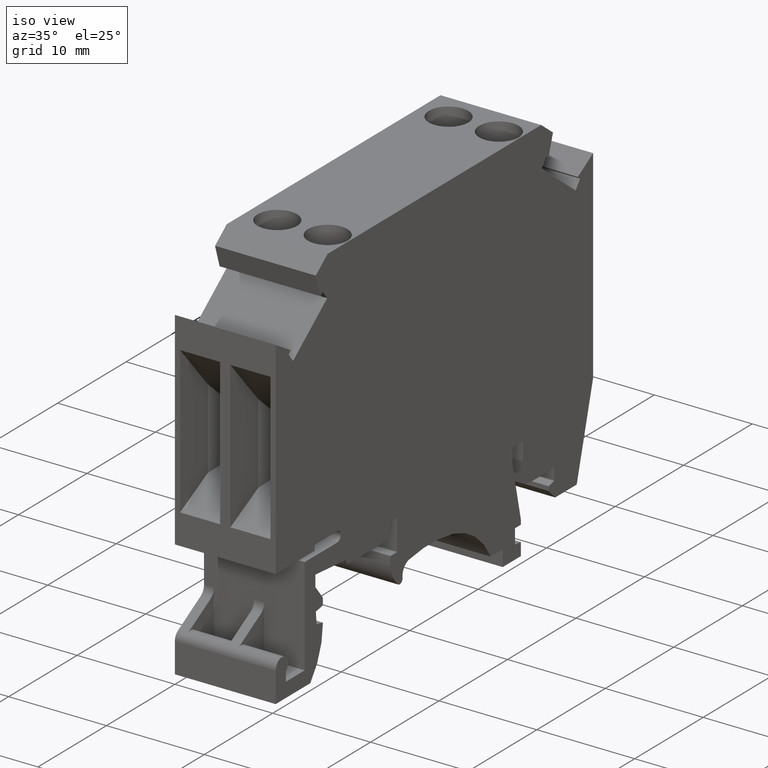
[diagram: clean part render]
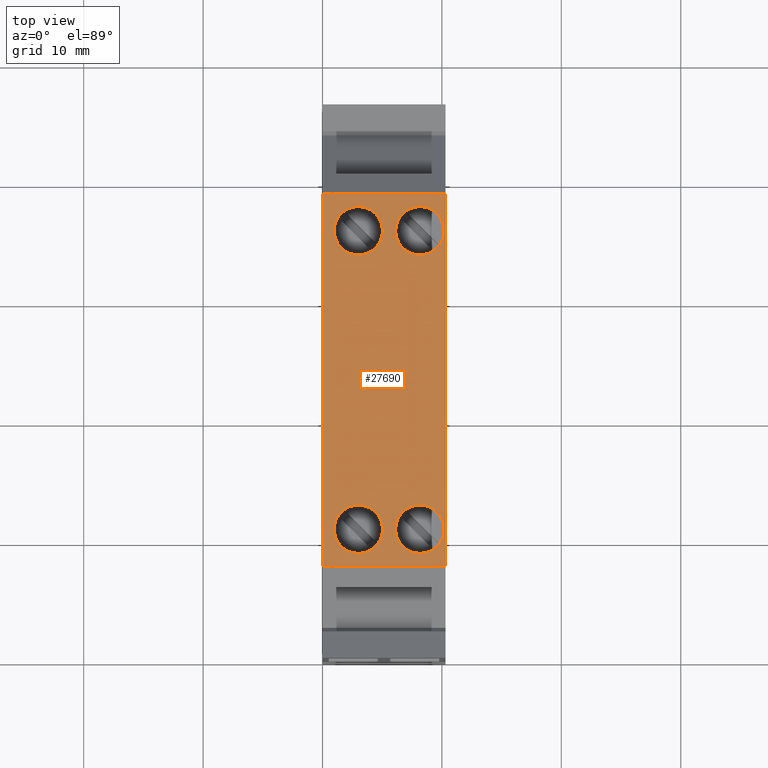
[diagram: tour spotlight — one face highlighted and labeled with its STEP entity id]
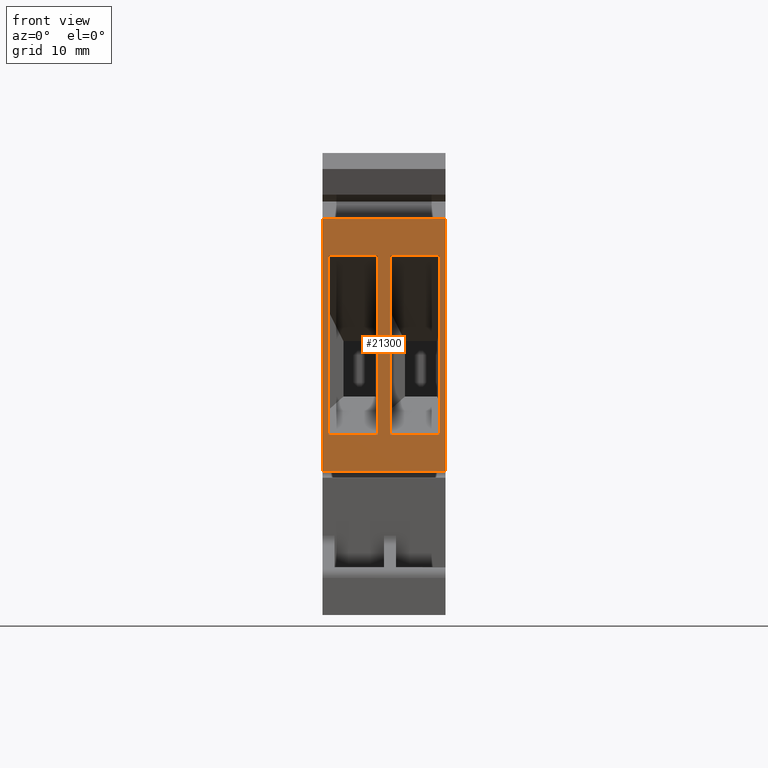
[diagram: tour spotlight — one face highlighted and labeled with its STEP entity id]
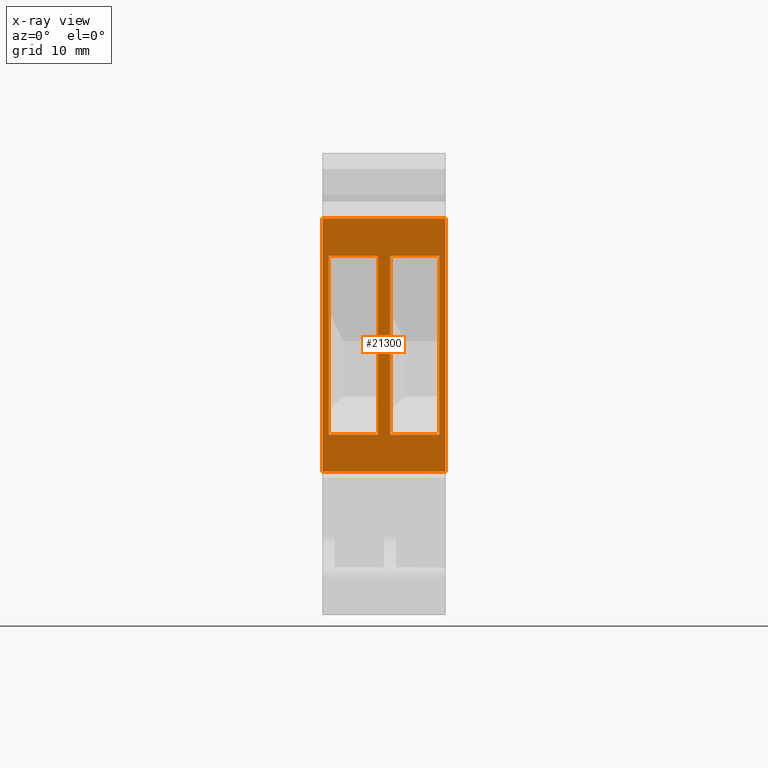
[diagram: x-ray of the same camera — body ghosted, this tour face saturated]
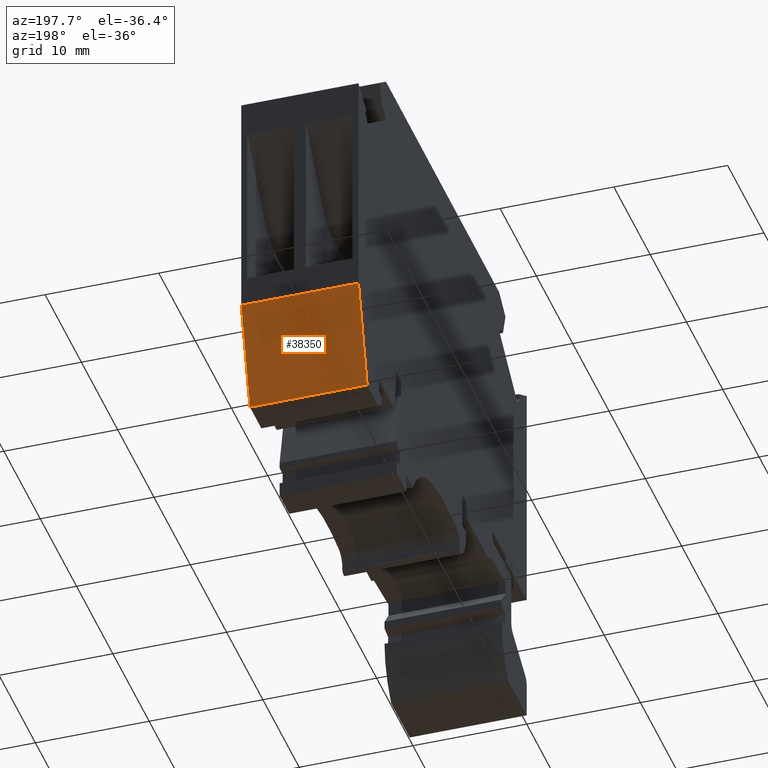
[diagram: tour spotlight — one face highlighted and labeled with its STEP entity id]
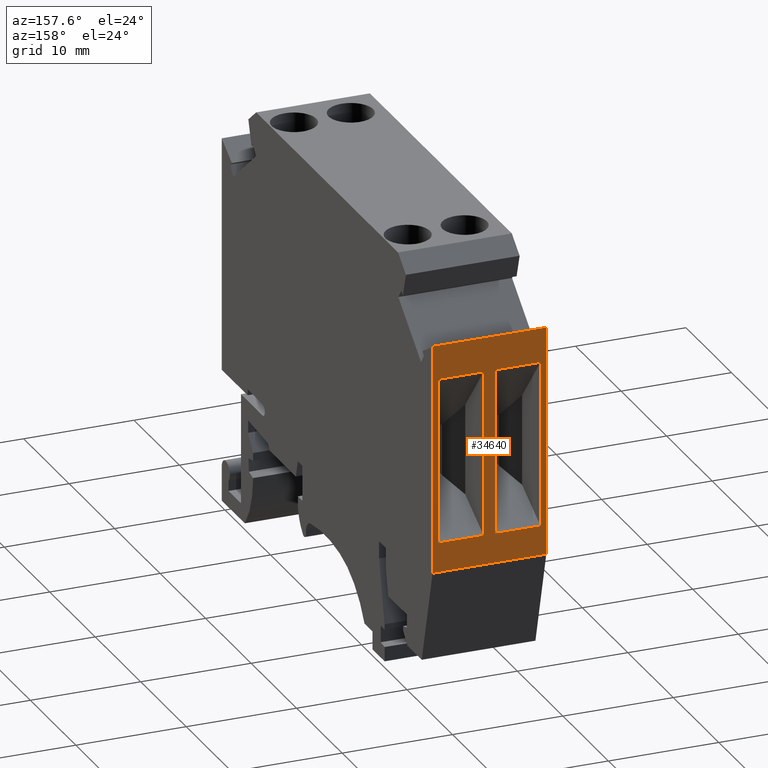
[diagram: tour spotlight — one face highlighted and labeled with its STEP entity id]
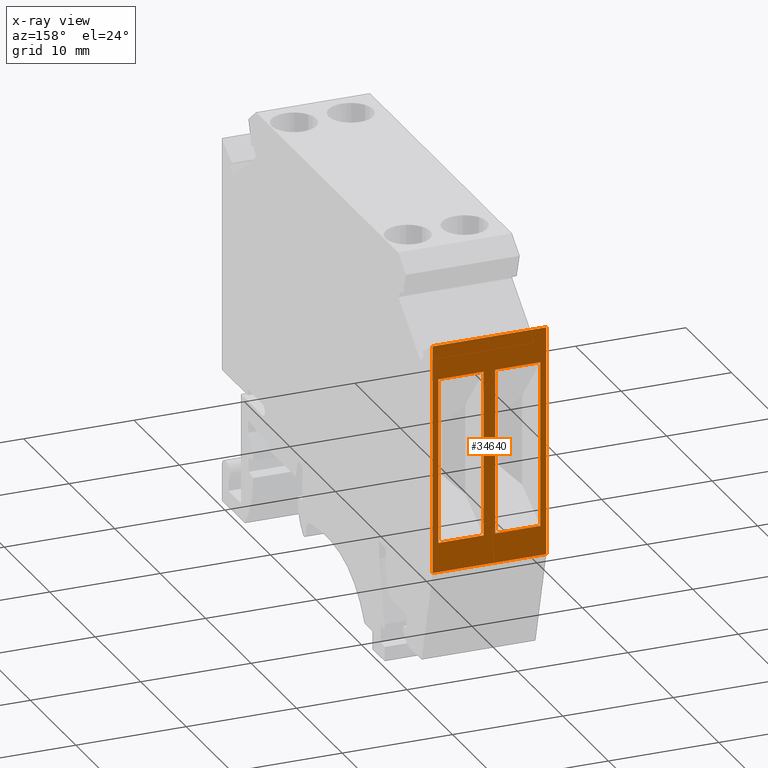
[diagram: x-ray of the same camera — body ghosted, this tour face saturated]
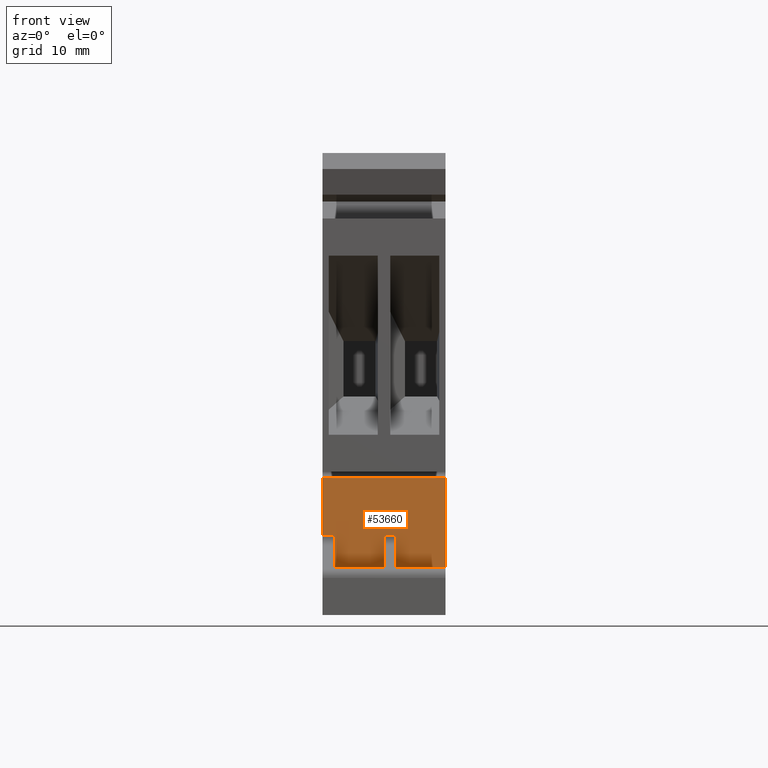
[diagram: tour spotlight — one face highlighted and labeled with its STEP entity id]
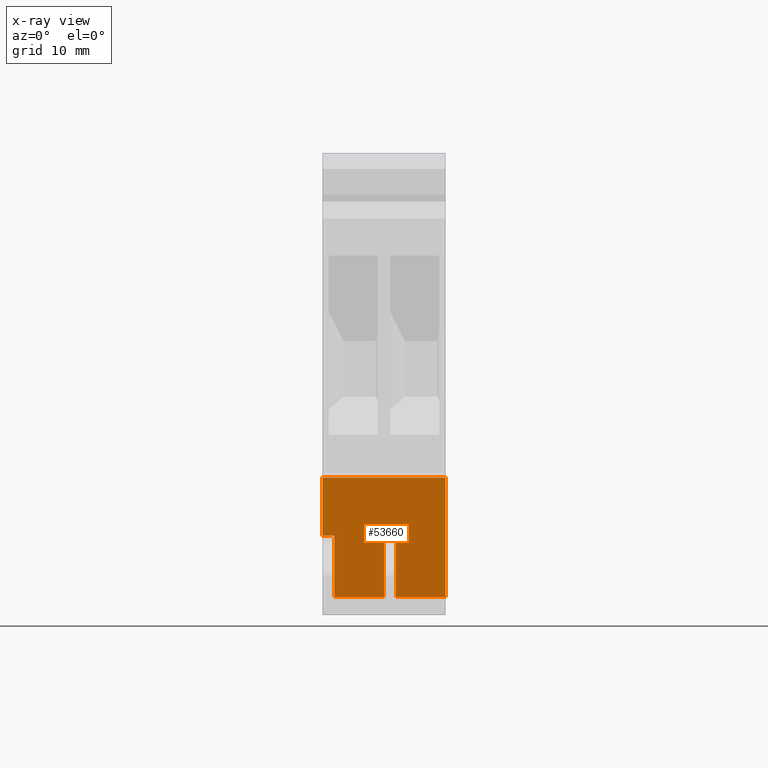
[diagram: x-ray of the same camera — body ghosted, this tour face saturated]
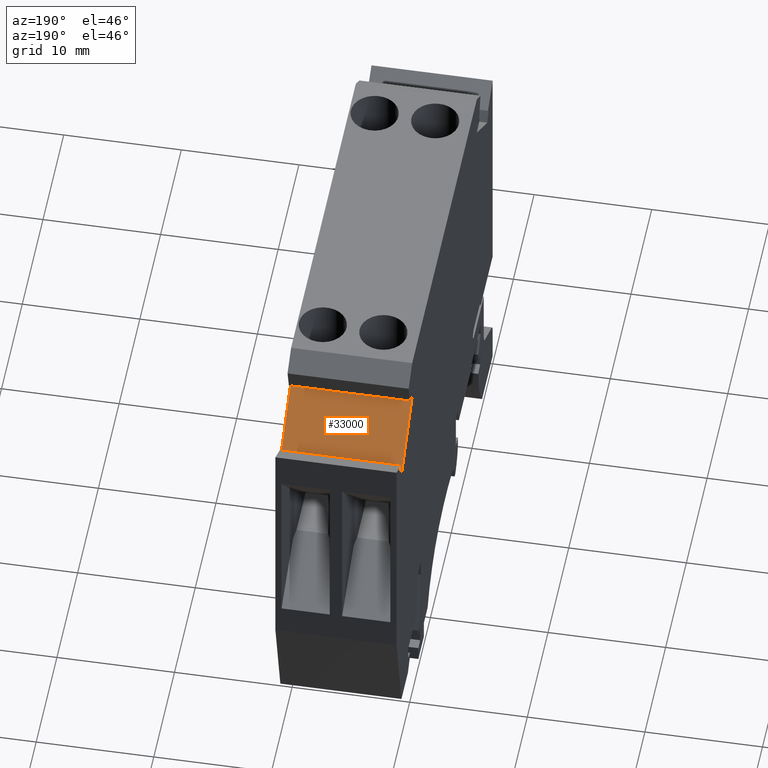
[diagram: tour spotlight — one face highlighted and labeled with its STEP entity id]
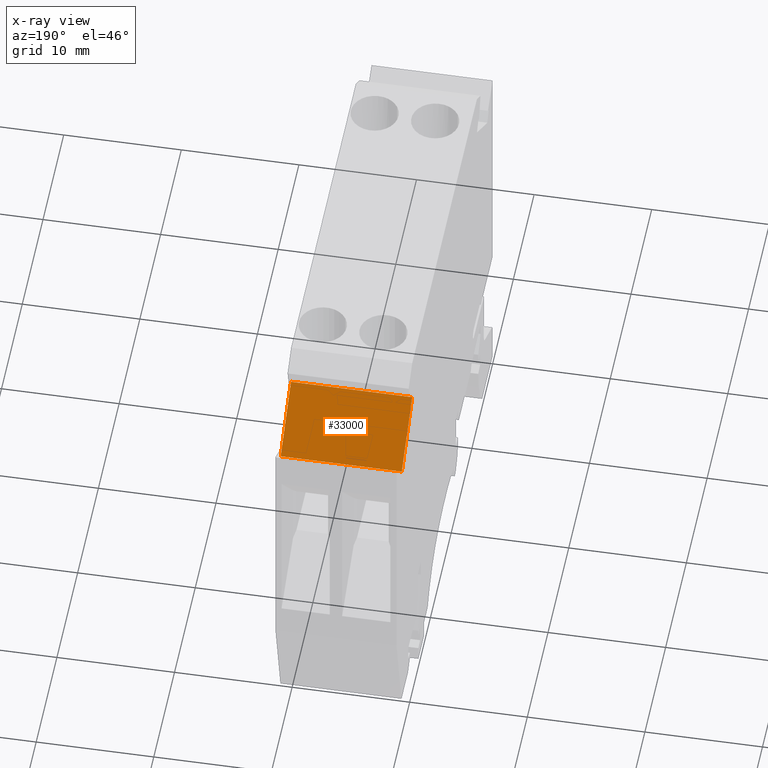
[diagram: x-ray of the same camera — body ghosted, this tour face saturated]
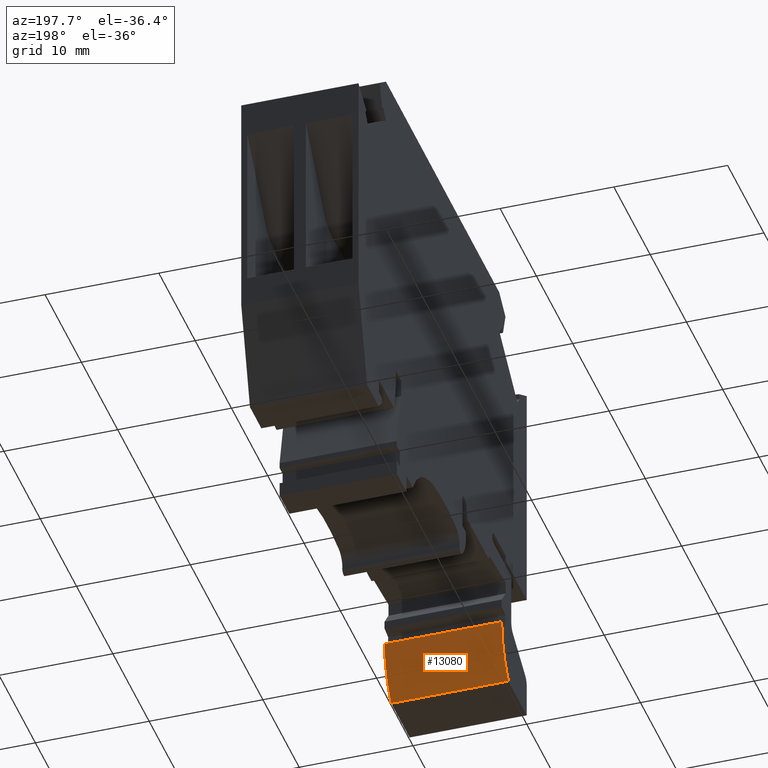
[diagram: tour spotlight — one face highlighted and labeled with its STEP entity id]
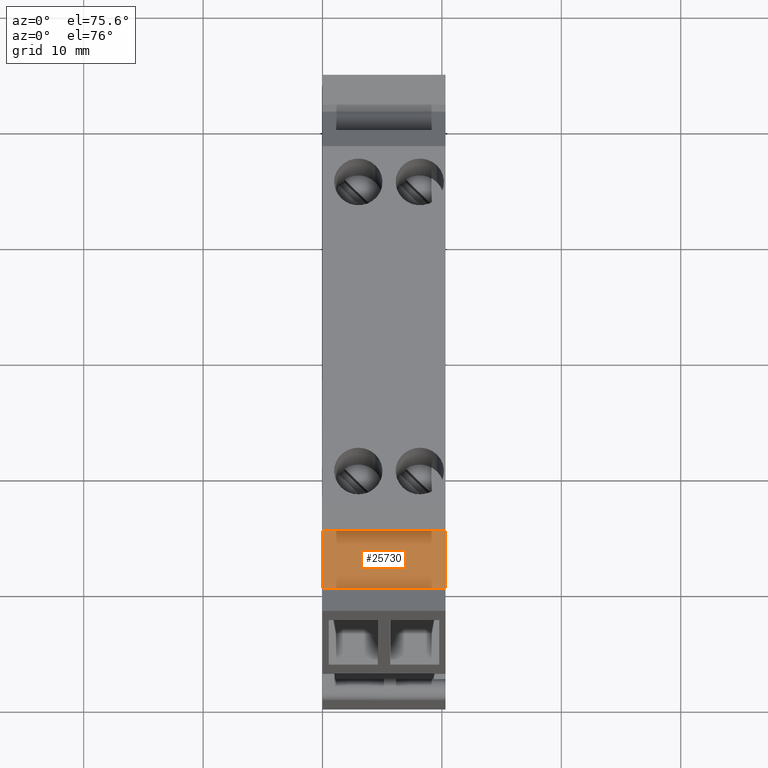
[diagram: tour spotlight — one face highlighted and labeled with its STEP entity id]
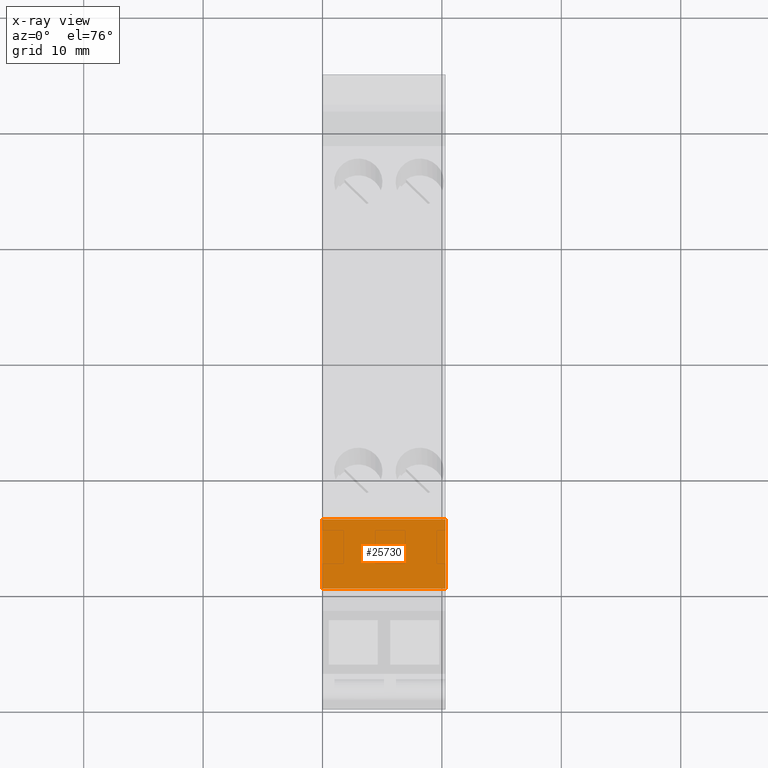
[diagram: x-ray of the same camera — body ghosted, this tour face saturated]
A machine part: a face-by-face anatomy tour. The part has 152 B-rep faces; the first image is the clean iso view, then the 8 largest visible faces are spotlighted one at a time (largest first), each with its STEP entity span.

Face 1 — top view, entity #27690. In plain terms, the highlighted planar face has unit normal (0, 0, -1).
Definition (entity closure, byte-faithful):
#840=CARTESIAN_POINT('',(-37.2770985338076,42.9295237515583,10.3));
#850=VERTEX_POINT('',#840);
#880=CARTESIAN_POINT('',(-56.8069065338077,42.9295237515583,10.3));
#890=DIRECTION('',(1.,0.,0.));
#900=VECTOR('',#890,1.);
#910=LINE('',#880,#900);
#920=CARTESIAN_POINT('',(-6.07709853380768,42.9295237515583,10.3));
#930=VERTEX_POINT('',#920);
#940=EDGE_CURVE('',#850,#930,#910,.T.);
#10520=CARTESIAN_POINT('',(-6.07709853380768,42.9295237515583,
-7.105427357601E-15));
#10530=VERTEX_POINT('',#10520);
#10560=CARTESIAN_POINT('',(-56.8069065338077,42.9295237515583,
3.5527136788005E-15));
#10570=DIRECTION('',(1.,0.,0.));
#10580=VECTOR('',#10570,1.);
#10590=LINE('',#10560,#10580);
#10600=CARTESIAN_POINT('',(-37.2770985338076,42.9295237515583,
-7.105427357601E-15));
#10610=VERTEX_POINT('',#10600);
#10620=EDGE_CURVE('',#10610,#10530,#10590,.T.);
#26610=CARTESIAN_POINT('',(-37.2770985338076,42.9295237515583,5.15));
#26620=DIRECTION('',(0.,0.,1.));
#26630=VECTOR('',#26620,1.);
#26640=LINE('',#26610,#26630);
#26650=EDGE_CURVE('',#10610,#850,#26640,.T.);
#26770=CARTESIAN_POINT('',(-36.932770920518,42.9295237515583,5.15));
#26780=DIRECTION('',(-0.,-1.,-0.));
#26790=DIRECTION('',(-1.,0.,0.));
#26800=AXIS2_PLACEMENT_3D('',#26770,#26780,#26790);
#26810=PLANE('',#26800);
#26820=CARTESIAN_POINT('',(-34.1770985338077,42.9295237515583,
3.00000000000001));
#26830=DIRECTION('',(-1.23259516440783E-32,1.,-2.46519032881566E-32));
#26840=DIRECTION('',(0.707106781186548,-2.46519032881566E-32,
0.707106781186547));
#26850=AXIS2_PLACEMENT_3D('',#26820,#26830,#26840);
#26860=CIRCLE('',#26850,2.025);
#26870=CARTESIAN_POINT('',(-36.1621992869182,42.9295237515583,
2.60000000000004));
#26880=VERTEX_POINT('',#26870);
#26890=CARTESIAN_POINT('',(-32.7452073019049,42.9295237515583,
4.43189123190277));
#26900=VERTEX_POINT('',#26890);
#26910=EDGE_CURVE('',#26880,#26900,#26860,.T.);
#26920=ORIENTED_EDGE('',*,*,#26910,.F.);
#26930=CARTESIAN_POINT('',(-35.6089897657105,42.9295237515583,
1.56810876809725));
#26940=VERTEX_POINT('',#26930);
#26950=EDGE_CURVE('',#26900,#26940,#26860,.T.);
#26960=ORIENTED_EDGE('',*,*,#26950,.F.);
#26970=EDGE_CURVE('',#26940,#26880,#26860,.T.);
#26980=ORIENTED_EDGE('',*,*,#26970,.F.);
#26990=EDGE_LOOP('',(#26980,#26960,#26920));
#27000=FACE_BOUND('',#26990,.T.);
#27010=CARTESIAN_POINT('',(-9.17709853380769,42.9295237515583,
3.00000000000001));
#27020=DIRECTION('',(-1.23259516440783E-32,1.,-2.46519032881566E-32));
#27030=DIRECTION('',(0.707106781186548,-2.46519032881566E-32,
0.707106781186547));
#27040=AXIS2_PLACEMENT_3D('',#27010,#27020,#27030);
#27050=CIRCLE('',#27040,2.025);
#27060=CARTESIAN_POINT('',(-11.1806523298767,42.9295237515583,
3.293933982822));
#27070=VERTEX_POINT('',#27060);
#27080=CARTESIAN_POINT('',(-7.74520730190493,42.9295237515583,
4.43189123190276));
#27090=VERTEX_POINT('',#27080);
#27100=EDGE_CURVE('',#27070,#27090,#27050,.T.);
#27110=ORIENTED_EDGE('',*,*,#27100,.F.);
#27120=CARTESIAN_POINT('',(-10.6089897657104,42.9295237515583,
1.56810876809725));
#27130=VERTEX_POINT('',#27120);
#27140=EDGE_CURVE('',#27090,#27130,#27050,.T.);
#27150=ORIENTED_EDGE('',*,*,#27140,.F.);
#27160=EDGE_CURVE('',#27130,#27070,#27050,.T.);
#27170=ORIENTED_EDGE('',*,*,#27160,.F.);
#27180=EDGE_LOOP('',(#27170,#27150,#27110));
#27190=FACE_BOUND('',#27180,.T.);
#27200=ORIENTED_EDGE('',*,*,#940,.T.);
#27210=ORIENTED_EDGE('',*,*,#26650,.T.);
#27220=ORIENTED_EDGE('',*,*,#10620,.F.);
#27230=CARTESIAN_POINT('',(-6.07709853380767,42.9295237515583,5.15));
#27240=DIRECTION('',(0.,0.,1.));
#27250=VECTOR('',#27240,1.);
#27260=LINE('',#27230,#27250);
#27270=EDGE_CURVE('',#10530,#930,#27260,.T.);
#27280=ORIENTED_EDGE('',*,*,#27270,.F.);
#27290=EDGE_LOOP('',(#27280,#27220,#27210,#27200));
#27300=FACE_OUTER_BOUND('',#27290,.T.);
#27310=CARTESIAN_POINT('',(-34.1770985338077,42.9295237515583,
8.15000000000001));
#27320=DIRECTION('',(-1.23259516440783E-32,1.,-2.46519032881566E-32));
#27330=DIRECTION('',(0.707106781186548,-2.46519032881566E-32,
0.707106781186547));
#27340=AXIS2_PLACEMENT_3D('',#27310,#27320,#27330);
#27350=CIRCLE('',#27340,2.025);
#27360=CARTESIAN_POINT('',(-36.1621992869182,42.9295237515583,
7.75000000000004));
#27370=VERTEX_POINT('',#27360);
#27380=CARTESIAN_POINT('',(-32.7452073019049,42.9295237515583,
9.58189123190277));
#27390=VERTEX_POINT('',#27380);
#27400=EDGE_CURVE('',#27370,#27390,#27350,.T.);
#27410=ORIENTED_EDGE('',*,*,#27400,.F.);
#27420=CARTESIAN_POINT('',(-35.6089897657105,42.9295237515583,
6.71810876809725));
#27430=VERTEX_POINT('',#27420);
#27440=EDGE_CURVE('',#27390,#27430,#27350,.T.);
#27450=ORIENTED_EDGE('',*,*,#27440,.F.);
#27460=EDGE_CURVE('',#27430,#27370,#27350,.T.);
#27470=ORIENTED_EDGE('',*,*,#27460,.F.);
#27480=EDGE_LOOP('',(#27470,#27450,#27410));
#27490=FACE_BOUND('',#27480,.T.);
#27500=CARTESIAN_POINT('',(-9.17709853380769,42.9295237515583,
8.15000000000001));
#27510=DIRECTION('',(-1.23259516440783E-32,1.,-2.46519032881566E-32));
#27520=DIRECTION('',(0.707106781186548,-2.46519032881566E-32,
0.707106781186547));
#27530=AXIS2_PLACEMENT_3D('',#27500,#27510,#27520);
#27540=CIRCLE('',#27530,2.025);
#27550=CARTESIAN_POINT('',(-11.1806523298767,42.9295237515583,
8.443933982822));
#27560=VERTEX_POINT('',#27550);
#27570=CARTESIAN_POINT('',(-7.74520730190493,42.9295237515583,
9.58189123190276));
#27580=VERTEX_POINT('',#27570);
#27590=EDGE_CURVE('',#27560,#27580,#27540,.T.);
#27600=ORIENTED_EDGE('',*,*,#27590,.F.);
#27610=CARTESIAN_POINT('',(-10.6089897657104,42.9295237515583,
6.71810876809725));
#27620=VERTEX_POINT('',#27610);
#27630=EDGE_CURVE('',#27580,#27620,#27540,.T.);
#27640=ORIENTED_EDGE('',*,*,#27630,.F.);
#27650=EDGE_CURVE('',#27620,#27560,#27540,.T.);
#27660=ORIENTED_EDGE('',*,*,#27650,.F.);
#27670=EDGE_LOOP('',(#27660,#27640,#27600));
#27680=FACE_BOUND('',#27670,.T.);
#27690=ADVANCED_FACE('',(#27000,#27190,#27300,#27490,#27680),#26810,.F.)
;

Face 2 — front view, entity #21300. An x-ray twin of the same camera follows (body ghosted, this face saturated) — the face is partly hidden behind the body. In plain terms, the highlighted planar face has unit normal (-0, 1, 0).
Definition (entity closure, byte-faithful):
#120=CARTESIAN_POINT('',(-44.8520985338077,16.2295237515583,10.3));
#130=VERTEX_POINT('',#120);
#160=CARTESIAN_POINT('',(-44.8520985338077,8.88178419700125E-16,10.3));
#170=DIRECTION('',(0.,1.,0.));
#180=VECTOR('',#170,1.);
#190=LINE('',#160,#180);
#200=CARTESIAN_POINT('',(-44.8520985338077,37.4391457022166,10.3));
#210=VERTEX_POINT('',#200);
#220=EDGE_CURVE('',#130,#210,#190,.T.);
#11240=CARTESIAN_POINT('',(-44.8520985338077,37.4391457022166,
-7.105427357601E-15));
#11250=VERTEX_POINT('',#11240);
#11280=CARTESIAN_POINT('',(-44.8520985338077,1.77635683940025E-15,
-7.105427357601E-15));
#11290=DIRECTION('',(0.,1.,0.));
#11300=VECTOR('',#11290,1.);
#11310=LINE('',#11280,#11300);
#11320=CARTESIAN_POINT('',(-44.8520985338077,16.2295237515583,
-7.105427357601E-15));
#11330=VERTEX_POINT('',#11320);
#11340=EDGE_CURVE('',#11330,#11250,#11310,.T.);
#20410=CARTESIAN_POINT('',(-44.8520985338077,16.7795237515581,5.15));
#20420=DIRECTION('',(1.,0.,0.));
#20430=DIRECTION('',(0.,-1.,0.));
#20440=AXIS2_PLACEMENT_3D('',#20410,#20420,#20430);
#20450=PLANE('',#20440);
#20460=CARTESIAN_POINT('',(-44.8520985338077,10.9158644389662,4.625));
#20470=DIRECTION('',(0.,1.,0.));
#20480=VECTOR('',#20470,1.);
#20490=LINE('',#20460,#20480);
#20500=CARTESIAN_POINT('',(-44.8520985338077,19.3295237515583,4.625));
#20510=VERTEX_POINT('',#20500);
#20520=CARTESIAN_POINT('',(-44.8520985338077,34.3295237515583,4.625));
#20530=VERTEX_POINT('',#20520);
#20540=EDGE_CURVE('',#20510,#20530,#20490,.T.);
#20550=ORIENTED_EDGE('',*,*,#20540,.F.);
#20560=CARTESIAN_POINT('',(-44.8520985338077,34.3295237515583,5.15));
#20570=DIRECTION('',(0.,0.,1.));
#20580=VECTOR('',#20570,1.);
#20590=LINE('',#20560,#20580);
#20600=CARTESIAN_POINT('',(-44.8520985338077,34.3295237515583,
0.525000000000004));
#20610=VERTEX_POINT('',#20600);
#20620=EDGE_CURVE('',#20610,#20530,#20590,.T.);
#20630=ORIENTED_EDGE('',*,*,#20620,.T.);
#20640=CARTESIAN_POINT('',(-44.8520985338077,10.9158644389662,
0.525000000000004));
#20650=DIRECTION('',(0.,-1.,0.));
#20660=VECTOR('',#20650,1.);
#20670=LINE('',#20640,#20660);
#20680=CARTESIAN_POINT('',(-44.8520985338077,19.3295237515583,
0.525000000000004));
#20690=VERTEX_POINT('',#20680);
#20700=EDGE_CURVE('',#20610,#20690,#20670,.T.);
#20710=ORIENTED_EDGE('',*,*,#20700,.F.);
#20720=CARTESIAN_POINT('',(-44.8520985338077,19.3295237515583,5.15));
#20730=DIRECTION('',(0.,0.,-1.));
#20740=VECTOR('',#20730,1.);
#20750=LINE('',#20720,#20740);
#20760=EDGE_CURVE('',#20510,#20690,#20750,.T.);
#20770=ORIENTED_EDGE('',*,*,#20760,.T.);
#20780=EDGE_LOOP('',(#20770,#20710,#20630,#20550));
#20790=FACE_BOUND('',#20780,.T.);
#20800=ORIENTED_EDGE('',*,*,#220,.T.);
#20810=CARTESIAN_POINT('',(-44.8520985338077,16.2295237515583,
-5.14999999999999));
#20820=DIRECTION('',(0.,0.,1.));
#20830=VECTOR('',#20820,1.);
#20840=LINE('',#20810,#20830);
#20850=EDGE_CURVE('',#11330,#130,#20840,.T.);
#20860=ORIENTED_EDGE('',*,*,#20850,.T.);
#20870=ORIENTED_EDGE('',*,*,#11340,.F.);
#20880=CARTESIAN_POINT('',(-44.8520985338077,37.4391457022166,
-5.14999999999999));
#20890=DIRECTION('',(0.,0.,1.));
#20900=VECTOR('',#20890,1.);
#20910=LINE('',#20880,#20900);
#20920=EDGE_CURVE('',#11250,#210,#20910,.T.);
#20930=ORIENTED_EDGE('',*,*,#20920,.F.);
#20940=EDGE_LOOP('',(#20930,#20870,#20860,#20800));
#20950=FACE_OUTER_BOUND('',#20940,.T.);
#20960=CARTESIAN_POINT('',(-44.8520985338077,10.9158644389662,9.775));
#20970=DIRECTION('',(0.,1.,0.));
#20980=VECTOR('',#20970,1.);
#20990=LINE('',#20960,#20980);
#21000=CARTESIAN_POINT('',(-44.8520985338077,19.3295237515583,9.775));
#21010=VERTEX_POINT('',#21000);
#21020=CARTESIAN_POINT('',(-44.8520985338077,34.3295237515583,9.775));
#21030=VERTEX_POINT('',#21020);
#21040=EDGE_CURVE('',#21010,#21030,#20990,.T.);
#21050=ORIENTED_EDGE('',*,*,#21040,.F.);
#21060=CARTESIAN_POINT('',(-44.8520985338077,34.3295237515583,10.3));
#21070=DIRECTION('',(0.,0.,1.));
#21080=VECTOR('',#21070,1.);
#21090=LINE('',#21060,#21080);
#21100=CARTESIAN_POINT('',(-44.8520985338077,34.3295237515583,5.675));
#21110=VERTEX_POINT('',#21100);
#21120=EDGE_CURVE('',#21110,#21030,#21090,.T.);
#21130=ORIENTED_EDGE('',*,*,#21120,.T.);
#21140=CARTESIAN_POINT('',(-44.8520985338077,10.9158644389662,5.675));
#21150=DIRECTION('',(0.,-1.,0.));
#21160=VECTOR('',#21150,1.);
#21170=LINE('',#21140,#21160);
#21180=CARTESIAN_POINT('',(-44.8520985338077,19.3295237515583,5.675));
#21190=VERTEX_POINT('',#21180);
#21200=EDGE_CURVE('',#21110,#21190,#21170,.T.);
#21210=ORIENTED_EDGE('',*,*,#21200,.F.);
#21220=CARTESIAN_POINT('',(-44.8520985338077,19.3295237515583,10.3));
#21230=DIRECTION('',(0.,0.,-1.));
#21240=VECTOR('',#21230,1.);
#21250=LINE('',#21220,#21240);
#21260=EDGE_CURVE('',#21010,#21190,#21250,.T.);
#21270=ORIENTED_EDGE('',*,*,#21260,.T.);
#21280=EDGE_LOOP('',(#21270,#21210,#21130,#21050));
#21290=FACE_BOUND('',#21280,.T.);
#21300=ADVANCED_FACE('',(#20790,#20950,#21290),#20450,.F.);

Face 3 — auxiliary view, entity #38350. In plain terms, the highlighted planar face has unit normal (-0, -0.9659, 0.2588).
Definition (entity closure, byte-faithful):
#1640=CARTESIAN_POINT('',(1.49790146619231,16.6504165609533,10.3));
#1650=VERTEX_POINT('',#1640);
#1680=CARTESIAN_POINT('',(-0.408976595318013,9.53385075155829,10.3));
#1690=DIRECTION('',(-0.258819045102521,-0.965925826289068,0.));
#1700=VECTOR('',#1690,1.);
#1710=LINE('',#1680,#1700);
#1720=CARTESIAN_POINT('',(-0.892444557849712,7.7295237515582,10.3));
#1730=VERTEX_POINT('',#1720);
#1740=EDGE_CURVE('',#1650,#1730,#1710,.T.);
#9720=CARTESIAN_POINT('',(-0.892444557849712,7.7295237515582,
-7.105427357601E-15));
#9730=VERTEX_POINT('',#9720);
#9760=CARTESIAN_POINT('',(-0.408976595318013,9.53385075155829,
3.5527136788005E-15));
#9770=DIRECTION('',(-0.258819045102521,-0.965925826289068,0.));
#9780=VECTOR('',#9770,1.);
#9790=LINE('',#9760,#9780);
#9800=CARTESIAN_POINT('',(1.49790146619231,16.6504165609533,
-7.105427357601E-15));
#9810=VERTEX_POINT('',#9800);
#9820=EDGE_CURVE('',#9810,#9730,#9790,.T.);
#34220=CARTESIAN_POINT('',(1.49790146619231,16.6504165609533,5.15));
#34230=DIRECTION('',(0.,0.,1.));
#34240=VECTOR('',#34230,1.);
#34250=LINE('',#34220,#34240);
#34260=EDGE_CURVE('',#9810,#1650,#34250,.T.);
#38190=CARTESIAN_POINT('',(1.44338278825473,16.4469500849288,5.15));
#38200=DIRECTION('',(-0.965925826289068,0.258819045102521,0.));
#38210=DIRECTION('',(0.258819045102521,0.965925826289068,0.));
#38220=AXIS2_PLACEMENT_3D('',#38190,#38200,#38210);
#38230=PLANE('',#38220);
#38240=ORIENTED_EDGE('',*,*,#1740,.T.);
#38250=ORIENTED_EDGE('',*,*,#34260,.T.);
#38260=ORIENTED_EDGE('',*,*,#9820,.F.);
#38270=CARTESIAN_POINT('',(-0.892444557849707,7.7295237515582,5.15));
#38280=DIRECTION('',(0.,0.,1.));
#38290=VECTOR('',#38280,1.);
#38300=LINE('',#38270,#38290);
#38310=EDGE_CURVE('',#9730,#1730,#38300,.T.);
#38320=ORIENTED_EDGE('',*,*,#38310,.F.);
#38330=EDGE_LOOP('',(#38320,#38260,#38250,#38240));
#38340=FACE_OUTER_BOUND('',#38330,.T.);
#38350=ADVANCED_FACE('',(#38340),#38230,.F.);

Face 4 — auxiliary view, entity #34640. An x-ray twin of the same camera follows (body ghosted, this face saturated) — the face is partly hidden behind the body. In plain terms, the highlighted planar face has unit normal (0, -1, -0).
Definition (entity closure, byte-faithful):
#1560=CARTESIAN_POINT('',(1.49790146619231,37.4391457022167,10.3));
#1570=VERTEX_POINT('',#1560);
#1600=CARTESIAN_POINT('',(1.49790146619231,8.88178419700125E-16,10.3));
#1610=DIRECTION('',(0.,-1.,0.));
#1620=VECTOR('',#1610,1.);
#1630=LINE('',#1600,#1620);
#1640=CARTESIAN_POINT('',(1.49790146619231,16.6504165609533,10.3));
#1650=VERTEX_POINT('',#1640);
#1660=EDGE_CURVE('',#1570,#1650,#1630,.T.);
#9800=CARTESIAN_POINT('',(1.49790146619231,16.6504165609533,
-7.105427357601E-15));
#9810=VERTEX_POINT('',#9800);
#9840=CARTESIAN_POINT('',(1.49790146619231,1.77635683940025E-15,
-7.105427357601E-15));
#9850=DIRECTION('',(0.,-1.,0.));
#9860=VECTOR('',#9850,1.);
#9870=LINE('',#9840,#9860);
#9880=CARTESIAN_POINT('',(1.49790146619231,37.4391457022167,
-7.105427357601E-15));
#9890=VERTEX_POINT('',#9880);
#9900=EDGE_CURVE('',#9890,#9810,#9870,.T.);
#33640=CARTESIAN_POINT('',(1.49790146619231,37.4391457022167,
-5.14999999999999));
#33650=DIRECTION('',(0.,0.,-1.));
#33660=VECTOR('',#33650,1.);
#33670=LINE('',#33640,#33660);
#33680=EDGE_CURVE('',#1570,#9890,#33670,.T.);
#33800=CARTESIAN_POINT('',(1.49790146619231,36.0815113279068,5.15));
#33810=DIRECTION('',(-1.,0.,0.));
#33820=DIRECTION('',(0.,1.,0.));
#33830=AXIS2_PLACEMENT_3D('',#33800,#33810,#33820);
#33840=PLANE('',#33830);
#33850=CARTESIAN_POINT('',(1.49790146619231,10.9158644389662,
0.525000000000004));
#33860=DIRECTION('',(0.,-1.,0.));
#33870=VECTOR('',#33860,1.);
#33880=LINE('',#33850,#33870);
#33890=CARTESIAN_POINT('',(1.49790146619231,34.3295237515583,
0.525000000000004));
#33900=VERTEX_POINT('',#33890);
#33910=CARTESIAN_POINT('',(1.49790146619231,19.3295237515583,
0.525000000000004));
#33920=VERTEX_POINT('',#33910);
#33930=EDGE_CURVE('',#33900,#33920,#33880,.T.);
#33940=ORIENTED_EDGE('',*,*,#33930,.T.);
#33950=CARTESIAN_POINT('',(1.49790146619231,34.3295237515583,5.15));
#33960=DIRECTION('',(0.,0.,1.));
#33970=VECTOR('',#33960,1.);
#33980=LINE('',#33950,#33970);
#33990=CARTESIAN_POINT('',(1.49790146619231,34.3295237515583,4.625));
#34000=VERTEX_POINT('',#33990);
#34010=EDGE_CURVE('',#33900,#34000,#33980,.T.);
#34020=ORIENTED_EDGE('',*,*,#34010,.F.);
#34030=CARTESIAN_POINT('',(1.49790146619231,10.9158644389662,4.625));
#34040=DIRECTION('',(0.,1.,0.));
#34050=VECTOR('',#34040,1.);
#34060=LINE('',#34030,#34050);
#34070=CARTESIAN_POINT('',(1.49790146619231,19.3295237515583,4.625));
#34080=VERTEX_POINT('',#34070);
#34090=EDGE_CURVE('',#34080,#34000,#34060,.T.);
#34100=ORIENTED_EDGE('',*,*,#34090,.T.);
#34110=CARTESIAN_POINT('',(1.49790146619231,19.3295237515583,5.15));
#34120=DIRECTION('',(0.,0.,-1.));
#34130=VECTOR('',#34120,1.);
#34140=LINE('',#34110,#34130);
#34150=EDGE_CURVE('',#34080,#33920,#34140,.T.);
#34160=ORIENTED_EDGE('',*,*,#34150,.F.);
#34170=EDGE_LOOP('',(#34160,#34100,#34020,#33940));
#34180=FACE_BOUND('',#34170,.T.);
#34190=ORIENTED_EDGE('',*,*,#1660,.T.);
#34200=ORIENTED_EDGE('',*,*,#33680,.F.);
#34210=ORIENTED_EDGE('',*,*,#9900,.F.);
#34220=CARTESIAN_POINT('',(1.49790146619231,16.6504165609533,5.15));
#34230=DIRECTION('',(0.,0.,1.));
#34240=VECTOR('',#34230,1.);
#34250=LINE('',#34220,#34240);
#34260=EDGE_CURVE('',#9810,#1650,#34250,.T.);
#34270=ORIENTED_EDGE('',*,*,#34260,.F.);
#34280=EDGE_LOOP('',(#34270,#34210,#34200,#34190));
#34290=FACE_OUTER_BOUND('',#34280,.T.);
#34300=CARTESIAN_POINT('',(1.49790146619231,10.9158644389662,5.675));
#34310=DIRECTION('',(0.,-1.,0.));
#34320=VECTOR('',#34310,1.);
#34330=LINE('',#34300,#34320);
#34340=CARTESIAN_POINT('',(1.49790146619231,34.3295237515583,5.675));
#34350=VERTEX_POINT('',#34340);
#34360=CARTESIAN_POINT('',(1.49790146619231,19.3295237515583,5.675));
#34370=VERTEX_POINT('',#34360);
#34380=EDGE_CURVE('',#34350,#34370,#34330,.T.);
#34390=ORIENTED_EDGE('',*,*,#34380,.T.);
#34400=CARTESIAN_POINT('',(1.49790146619231,34.3295237515583,10.3));
#34410=DIRECTION('',(0.,0.,1.));
#34420=VECTOR('',#34410,1.);
#34430=LINE('',#34400,#34420);
#34440=CARTESIAN_POINT('',(1.49790146619231,34.3295237515583,9.775));
#34450=VERTEX_POINT('',#34440);
#34460=EDGE_CURVE('',#34350,#34450,#34430,.T.);
#34470=ORIENTED_EDGE('',*,*,#34460,.F.);
#34480=CARTESIAN_POINT('',(1.49790146619231,10.9158644389662,9.775));
#34490=DIRECTION('',(0.,1.,0.));
#34500=VECTOR('',#34490,1.);
#34510=LINE('',#34480,#34500);
#34520=CARTESIAN_POINT('',(1.49790146619231,19.3295237515583,9.775));
#34530=VERTEX_POINT('',#34520);
#34540=EDGE_CURVE('',#34530,#34450,#34510,.T.);
#34550=ORIENTED_EDGE('',*,*,#34540,.T.);
#34560=CARTESIAN_POINT('',(1.49790146619231,19.3295237515583,10.3));
#34570=DIRECTION('',(0.,0.,-1.));
#34580=VECTOR('',#34570,1.);
#34590=LINE('',#34560,#34580);
#34600=EDGE_CURVE('',#34530,#34370,#34590,.T.);
#34610=ORIENTED_EDGE('',*,*,#34600,.F.);
#34620=EDGE_LOOP('',(#34610,#34550,#34470,#34390));
#34630=FACE_BOUND('',#34620,.T.);
#34640=ADVANCED_FACE('',(#34180,#34290,#34630),#33840,.F.);

Face 5 — front view, entity #53660. An x-ray twin of the same camera follows (body ghosted, this face saturated) — the face is partly hidden behind the body. In plain terms, the highlighted planar face has unit normal (0, -1, -0).
Definition (entity closure, byte-faithful):
#5230=CARTESIAN_POINT('',(-40.6020985338077,5.72952375155827,10.3));
#5240=VERTEX_POINT('',#5230);
#5270=CARTESIAN_POINT('',(-40.6020985338077,15.7295237515583,10.3));
#5280=DIRECTION('',(0.,1.,0.));
#5290=VECTOR('',#5280,1.);
#5300=LINE('',#5270,#5290);
#5310=CARTESIAN_POINT('',(-40.6020985338077,15.7295237515581,10.3));
#5320=VERTEX_POINT('',#5310);
#5330=EDGE_CURVE('',#5240,#5320,#5300,.T.);
#6120=CARTESIAN_POINT('',(-40.6020985338077,15.7295237515581,
-7.105427357601E-15));
#6130=VERTEX_POINT('',#6120);
#6160=CARTESIAN_POINT('',(-40.6020985338077,9.53385075155828,
3.5527136788005E-15));
#6170=DIRECTION('',(0.,1.,0.));
#6180=VECTOR('',#6170,1.);
#6190=LINE('',#6160,#6180);
#6200=CARTESIAN_POINT('',(-40.6020985338077,10.8802279070745,
-7.105427357601E-15));
#6210=VERTEX_POINT('',#6200);
#6220=EDGE_CURVE('',#6210,#6130,#6190,.T.);
#51890=CARTESIAN_POINT('',(-40.6020985338077,15.7295237515583,5.15));
#51900=DIRECTION('',(0.,0.,-1.));
#51910=VECTOR('',#51900,1.);
#51920=LINE('',#51890,#51910);
#51930=EDGE_CURVE('',#5320,#6130,#51920,.T.);
#52120=CARTESIAN_POINT('',(-40.6020985338077,8.88178419700125E-16,6.15))
;
#52130=DIRECTION('',(0.,-1.,0.));
#52140=VECTOR('',#52130,1.);
#52150=LINE('',#52120,#52140);
#52160=CARTESIAN_POINT('',(-40.6020985338077,10.8802279070745,6.15));
#52170=VERTEX_POINT('',#52160);
#52180=CARTESIAN_POINT('',(-40.6020985338077,5.72952375155827,6.15));
#52190=VERTEX_POINT('',#52180);
#52200=EDGE_CURVE('',#52170,#52190,#52150,.T.);
#52980=CARTESIAN_POINT('',(-40.6020985338077,10.8802279070745,
5.14999999999999));
#52990=VERTEX_POINT('',#52980);
#53020=CARTESIAN_POINT('',(-40.6020985338077,10.8802279070745,10.3));
#53030=DIRECTION('',(0.,0.,-1.));
#53040=VECTOR('',#53030,1.);
#53050=LINE('',#53020,#53040);
#53060=EDGE_CURVE('',#52170,#52990,#53050,.T.);
#53180=CARTESIAN_POINT('',(-40.6020985338077,15.7295237515583,5.15));
#53190=DIRECTION('',(-1.,0.,0.));
#53200=DIRECTION('',(0.,1.,0.));
#53210=AXIS2_PLACEMENT_3D('',#53180,#53190,#53200);
#53220=PLANE('',#53210);
#53230=CARTESIAN_POINT('',(-40.6020985338077,10.8802279070745,5.15));
#53240=DIRECTION('',(0.,0.,-1.));
#53250=VECTOR('',#53240,1.);
#53260=LINE('',#53230,#53250);
#53270=CARTESIAN_POINT('',(-40.6020985338077,10.8802279070745,1.));
#53280=VERTEX_POINT('',#53270);
#53290=EDGE_CURVE('',#53280,#6210,#53260,.T.);
#53300=ORIENTED_EDGE('',*,*,#53290,.F.);
#53310=ORIENTED_EDGE('',*,*,#6220,.F.);
#53320=ORIENTED_EDGE('',*,*,#51930,.T.);
#53330=ORIENTED_EDGE('',*,*,#5330,.T.);
#53340=CARTESIAN_POINT('',(-40.6020985338077,5.72952375155827,
1.06581410364015E-14));
#53350=DIRECTION('',(0.,0.,-1.));
#53360=VECTOR('',#53350,1.);
#53370=LINE('',#53340,#53360);
#53380=EDGE_CURVE('',#5240,#52190,#53370,.T.);
#53390=ORIENTED_EDGE('',*,*,#53380,.F.);
#53400=ORIENTED_EDGE('',*,*,#52200,.T.);
#53410=ORIENTED_EDGE('',*,*,#53060,.F.);
#53420=CARTESIAN_POINT('',(-40.6020985338077,1.77635683940025E-15,
5.14999999999999));
#53430=DIRECTION('',(0.,1.,0.));
#53440=VECTOR('',#53430,1.);
#53450=LINE('',#53420,#53440);
#53460=CARTESIAN_POINT('',(-40.6020985338077,5.72952375155827,
5.14999999999999));
#53470=VERTEX_POINT('',#53460);
#53480=EDGE_CURVE('',#53470,#52990,#53450,.T.);
#53490=ORIENTED_EDGE('',*,*,#53480,.T.);
#53500=CARTESIAN_POINT('',(-40.6020985338077,5.72952375155827,
-5.14999999999999));
#53510=DIRECTION('',(0.,0.,-1.));
#53520=VECTOR('',#53510,1.);
#53530=LINE('',#53500,#53520);
#53540=CARTESIAN_POINT('',(-40.6020985338077,5.72952375155828,1.));
#53550=VERTEX_POINT('',#53540);
#53560=EDGE_CURVE('',#53470,#53550,#53530,.T.);
#53570=ORIENTED_EDGE('',*,*,#53560,.F.);
#53580=CARTESIAN_POINT('',(-40.6020985338077,1.77635683940025E-15,1.));
#53590=DIRECTION('',(0.,-1.,0.));
#53600=VECTOR('',#53590,1.);
#53610=LINE('',#53580,#53600);
#53620=EDGE_CURVE('',#53280,#53550,#53610,.T.);
#53630=ORIENTED_EDGE('',*,*,#53620,.T.);
#53640=EDGE_LOOP('',(#53630,#53570,#53490,#53410,#53400,#53390,#53330,
#53320,#53310,#53300));
#53650=FACE_OUTER_BOUND('',#53640,.T.);
#53660=ADVANCED_FACE('',(#53650),#53220,.T.);

Face 6 — auxiliary view, entity #33000. An x-ray twin of the same camera follows (body ghosted, this face saturated) — the face is partly hidden behind the body. In plain terms, the highlighted planar face has unit normal (0, -0.6157, -0.788).
Definition (entity closure, byte-faithful):
#1240=CARTESIAN_POINT('',(-6.03224643068964,38.8653486152182,10.3));
#1250=VERTEX_POINT('',#1240);
#1280=CARTESIAN_POINT('',(-56.8069065338077,78.534860744549,10.3));
#1290=DIRECTION('',(0.788010753606717,-0.615661475325664,0.));
#1300=VECTOR('',#1290,1.);
#1310=LINE('',#1280,#1300);
#1320=CARTESIAN_POINT('',(-1.04807841412707,34.9712897837833,10.3));
#1330=VERTEX_POINT('',#1320);
#1340=EDGE_CURVE('',#1250,#1330,#1310,.T.);
#10120=CARTESIAN_POINT('',(-1.04807841412707,34.9712897837833,
-7.105427357601E-15));
#10130=VERTEX_POINT('',#10120);
#10160=CARTESIAN_POINT('',(-56.8069065338077,78.534860744549,
3.5527136788005E-15));
#10170=DIRECTION('',(0.788010753606717,-0.615661475325664,0.));
#10180=VECTOR('',#10170,1.);
#10190=LINE('',#10160,#10180);
#10200=CARTESIAN_POINT('',(-6.03224643068964,38.8653486152182,
-7.105427357601E-15));
#10210=VERTEX_POINT('',#10200);
#10220=EDGE_CURVE('',#10210,#10130,#10190,.T.);
#32680=CARTESIAN_POINT('',(-6.03224643068964,38.8653486152182,5.15));
#32690=DIRECTION('',(0.,0.,-1.));
#32700=VECTOR('',#32690,1.);
#32710=LINE('',#32680,#32700);
#32720=EDGE_CURVE('',#1250,#10210,#32710,.T.);
#32840=CARTESIAN_POINT('',(-5.79584320460761,38.6806501726204,5.15));
#32850=DIRECTION('',(-0.615661475325664,-0.788010753606717,-0.));
#32860=DIRECTION('',(-0.788010753606717,0.615661475325664,0.));
#32870=AXIS2_PLACEMENT_3D('',#32840,#32850,#32860);
#32880=PLANE('',#32870);
#32890=ORIENTED_EDGE('',*,*,#1340,.T.);
#32900=ORIENTED_EDGE('',*,*,#32720,.F.);
#32910=ORIENTED_EDGE('',*,*,#10220,.F.);
#32920=CARTESIAN_POINT('',(-1.04807841412707,34.9712897837833,5.15));
#32930=DIRECTION('',(0.,0.,-1.));
#32940=VECTOR('',#32930,1.);
#32950=LINE('',#32920,#32940);
#32960=EDGE_CURVE('',#1330,#10130,#32950,.T.);
#32970=ORIENTED_EDGE('',*,*,#32960,.T.);
#32980=EDGE_LOOP('',(#32970,#32910,#32900,#32890));
#32990=FACE_OUTER_BOUND('',#32980,.T.);
#33000=ADVANCED_FACE('',(#32990),#32880,.F.);

Face 7 — auxiliary view, entity #13080. In plain terms, the highlighted cylindrical surface (partial cylindrical patch) has radius 7.47 mm, axis along (1, -0, 0).
Definition (entity closure, byte-faithful):
#4730=CARTESIAN_POINT('',(-37.949420700094,9.12894476048504,10.3));
#4740=VERTEX_POINT('',#4730);
#4770=CARTESIAN_POINT('',(-45.4194206776555,9.12952375155828,10.3));
#4780=DIRECTION('',(0.,0.,1.));
#4790=DIRECTION('',(1.,0.,0.));
#4800=AXIS2_PLACEMENT_3D('',#4770,#4780,#4790);
#4810=CIRCLE('',#4800,7.47);
#4820=CARTESIAN_POINT('',(-39.7810787227897,4.22952375155828,10.3));
#4830=VERTEX_POINT('',#4820);
#4840=EDGE_CURVE('',#4830,#4740,#4810,.T.);
#6620=CARTESIAN_POINT('',(-39.7810787227897,4.22952375155828,
-7.105427357601E-15));
#6630=VERTEX_POINT('',#6620);
#6660=CARTESIAN_POINT('',(-45.4194206776555,9.12952375155828,
3.5527136788005E-15));
#6670=DIRECTION('',(0.,0.,1.));
#6680=DIRECTION('',(1.,0.,0.));
#6690=AXIS2_PLACEMENT_3D('',#6660,#6670,#6680);
#6700=CIRCLE('',#6690,7.47);
#6710=CARTESIAN_POINT('',(-37.949420700094,9.12894476048504,
-7.105427357601E-15));
#6720=VERTEX_POINT('',#6710);
#6730=EDGE_CURVE('',#6630,#6720,#6700,.T.);
#12870=CARTESIAN_POINT('',(-45.4194206776555,9.12952375155828,5.15));
#12880=DIRECTION('',(0.,0.,1.));
#12890=DIRECTION('',(1.,0.,0.));
#12900=AXIS2_PLACEMENT_3D('',#12870,#12880,#12890);
#12910=CYLINDRICAL_SURFACE('',#12900,7.47);
#12920=ORIENTED_EDGE('',*,*,#4840,.F.);
#12930=CARTESIAN_POINT('',(-37.949420700094,9.12894476048504,5.15));
#12940=DIRECTION('',(0.,0.,1.));
#12950=VECTOR('',#12940,1.);
#12960=LINE('',#12930,#12950);
#12970=EDGE_CURVE('',#6720,#4740,#12960,.T.);
#12980=ORIENTED_EDGE('',*,*,#12970,.T.);
#12990=ORIENTED_EDGE('',*,*,#6730,.T.);
#13000=CARTESIAN_POINT('',(-39.7810787227897,4.22952375155828,5.15));
#13010=DIRECTION('',(0.,0.,1.));
#13020=VECTOR('',#13010,1.);
#13030=LINE('',#13000,#13020);
#13040=EDGE_CURVE('',#6630,#4830,#13030,.T.);
#13050=ORIENTED_EDGE('',*,*,#13040,.F.);
#13060=EDGE_LOOP('',(#13050,#12990,#12980,#12920));
#13070=FACE_OUTER_BOUND('',#13060,.T.);
#13080=ADVANCED_FACE('',(#13070),#12910,.T.);

Face 8 — auxiliary view, entity #25730. An x-ray twin of the same camera follows (body ghosted, this face saturated) — the face is partly hidden behind the body. In plain terms, the highlighted planar face has unit normal (0, 0.6157, -0.788).
Definition (entity closure, byte-faithful):
#440=CARTESIAN_POINT('',(-42.3061186534883,34.9712897837833,10.3));
#450=VERTEX_POINT('',#440);
#480=CARTESIAN_POINT('',(-56.8069065338077,23.6420326398668,10.3));
#490=DIRECTION('',(-0.788010753606717,-0.615661475325664,0.));
#500=VECTOR('',#490,1.);
#510=LINE('',#480,#500);
#520=CARTESIAN_POINT('',(-37.3219506369257,38.8653486152182,10.3));
#530=VERTEX_POINT('',#520);
#540=EDGE_CURVE('',#530,#450,#510,.T.);
#10920=CARTESIAN_POINT('',(-37.3219506369257,38.8653486152182,
-7.105427357601E-15));
#10930=VERTEX_POINT('',#10920);
#10960=CARTESIAN_POINT('',(-56.8069065338077,23.6420326398668,
3.5527136788005E-15));
#10970=DIRECTION('',(-0.788010753606717,-0.615661475325664,0.));
#10980=VECTOR('',#10970,1.);
#10990=LINE('',#10960,#10980);
#11000=CARTESIAN_POINT('',(-42.3061186534883,34.9712897837833,
-7.105427357601E-15));
#11010=VERTEX_POINT('',#11000);
#11020=EDGE_CURVE('',#10930,#11010,#10990,.T.);
#25410=CARTESIAN_POINT('',(-42.3061186534883,34.9712897837833,5.15));
#25420=DIRECTION('',(0.,0.,-1.));
#25430=VECTOR('',#25420,1.);
#25440=LINE('',#25410,#25430);
#25450=EDGE_CURVE('',#450,#11010,#25440,.T.);
#25570=CARTESIAN_POINT('',(-42.3061186534883,34.9712897837833,5.15));
#25580=DIRECTION('',(0.615661475325664,-0.788010753606717,0.));
#25590=DIRECTION('',(-0.788010753606717,-0.615661475325664,0.));
#25600=AXIS2_PLACEMENT_3D('',#25570,#25580,#25590);
#25610=PLANE('',#25600);
#25620=ORIENTED_EDGE('',*,*,#540,.F.);
#25630=ORIENTED_EDGE('',*,*,#25450,.F.);
#25640=ORIENTED_EDGE('',*,*,#11020,.T.);
#25650=CARTESIAN_POINT('',(-37.3219506369257,38.8653486152182,5.15));
#25660=DIRECTION('',(0.,0.,-1.));
#25670=VECTOR('',#25660,1.);
#25680=LINE('',#25650,#25670);
#25690=EDGE_CURVE('',#530,#10930,#25680,.T.);
#25700=ORIENTED_EDGE('',*,*,#25690,.T.);
#25710=EDGE_LOOP('',(#25700,#25640,#25630,#25620));
#25720=FACE_OUTER_BOUND('',#25710,.T.);
#25730=ADVANCED_FACE('',(#25720),#25610,.F.);